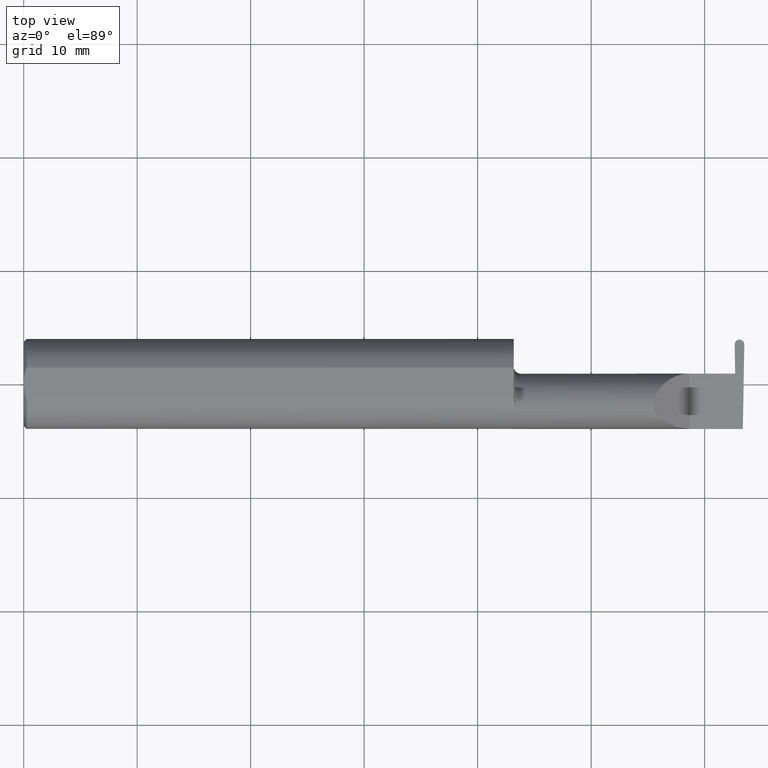
[diagram: clean part render]
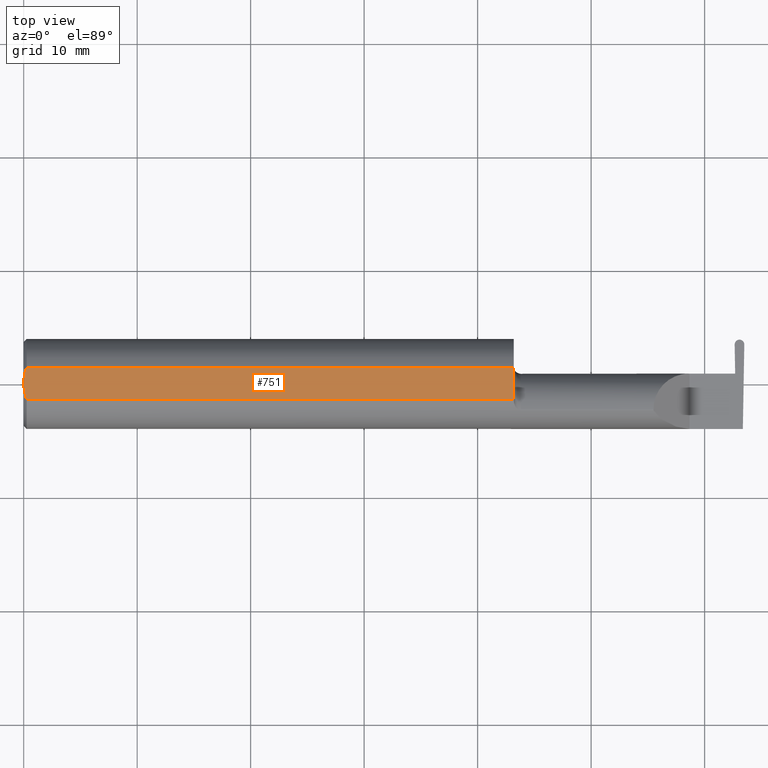
[diagram: same view with one face highlighted and labeled with its STEP entity id]
A machine part, top view. The second image highlights one B-rep face of the part: STEP entity #751.
In plain terms, the highlighted planar face has unit normal (0, 0, 1).
Its self-contained STEP definition (entity closure, byte-faithful):
#1 = CARTESIAN_POINT ( 'NONE',  ( 0.0009113193687667381273, -0.01867274705588958111, 0.1460999999999998411 ) ) ;
#4 = VERTEX_POINT ( 'NONE', #445 ) ;
#5 = DIRECTION ( 'NONE',  ( 0.000000000000000000, 0.000000000000000000, 1.000000000000000000 ) ) ;
#23 = EDGE_CURVE ( 'NONE', #552, #4, #635, .T. ) ;
#41 = CARTESIAN_POINT ( 'NONE',  ( 1.699999999999999956, -0.05497272050753934658, 0.1460999999999998689 ) ) ;
#52 = B_SPLINE_CURVE_WITH_KNOTS ( 'NONE', 3,
 ( #698, #749, #188, #1, #702, #746 ),
 .UNSPECIFIED., .F., .F.,
 ( 4, 2, 4 ),
 ( 0.001497827971916944247, 0.002206109860466205601, 0.002914391749015466521 ),
 .UNSPECIFIED. ) ;
#58 = EDGE_CURVE ( 'NONE', #686, #552, #266, .T. ) ;
#98 = CARTESIAN_POINT ( 'NONE',  ( 1.699999999999999956, 0.05497272050753933964, 0.1460999999999998689 ) ) ;
#115 = VECTOR ( 'NONE', #138, 39.37007874015748143 ) ;
#125 = VECTOR ( 'NONE', #605, 39.37007874015748143 ) ;
#138 = DIRECTION ( 'NONE',  ( -1.000000000000000000, -0.000000000000000000, -0.000000000000000000 ) ) ;
#188 = CARTESIAN_POINT ( 'NONE',  ( 0.004356241145161599167, -0.03705973501792377695, 0.1460999999999998689 ) ) ;
#212 = CARTESIAN_POINT ( 'NONE',  ( 0.009999999999999825001, 0.05497272050753933964, 0.1460999999999998689 ) ) ;
#220 = CARTESIAN_POINT ( 'NONE',  ( -3.378711048560533498E-16, 0.009396510398413096196, 0.1460999999999998689 ) ) ;
#266 = LINE ( 'NONE', #777, #125 ) ;
#269 = VERTEX_POINT ( 'NONE', #428 ) ;
#272 = LINE ( 'NONE', #724, #310 ) ;
#294 = ORIENTED_EDGE ( 'NONE', *, *, #23, .T. ) ;
#310 = VECTOR ( 'NONE', #776, 39.37007874015748143 ) ;
#312 = DIRECTION ( 'NONE',  ( 1.000000000000000000, 0.000000000000000000, -0.000000000000000000 ) ) ;
#326 = ORIENTED_EDGE ( 'NONE', *, *, #573, .F. ) ;
#373 = B_SPLINE_CURVE_WITH_KNOTS ( 'NONE', 3,
 ( #529, #220, #468, #788, #773, #212 ),
 .UNSPECIFIED., .F., .F.,
 ( 4, 2, 4 ),
 ( 0.002914391749015466521, 0.003623333355014861108, 0.004332274961014255694 ),
 .UNSPECIFIED. ) ;
#374 = CARTESIAN_POINT ( 'NONE',  ( 2.814752029381861309, 0.1560999999999999888, 0.1460999999999998689 ) ) ;
#410 = VERTEX_POINT ( 'NONE', #626 ) ;
#418 = AXIS2_PLACEMENT_3D ( 'NONE', #374, #5, #312 ) ;
#428 = CARTESIAN_POINT ( 'NONE',  ( 0.009999999999999825001, -0.05497272050753933964, 0.1460999999999998689 ) ) ;
#445 = CARTESIAN_POINT ( 'NONE',  ( 0.009999999999999825001, 0.05497272050753933964, 0.1460999999999998689 ) ) ;
#468 = CARTESIAN_POINT ( 'NONE',  ( 0.0009290501461037190250, 0.01879395969143605669, 0.1460999999999998689 ) ) ;
#475 = ORIENTED_EDGE ( 'NONE', *, *, #58, .T. ) ;
#529 = CARTESIAN_POINT ( 'NONE',  ( 0.000000000000000000, 0.000000000000000000, 0.1460999999999998689 ) ) ;
#539 = EDGE_CURVE ( 'NONE', #269, #686, #272, .T. ) ;
#552 = VERTEX_POINT ( 'NONE', #98 ) ;
#573 = EDGE_CURVE ( 'NONE', #410, #4, #373, .T. ) ;
#574 = CARTESIAN_POINT ( 'NONE',  ( 0.000000000000000000, 0.05497272050753933964, 0.1460999999999998689 ) ) ;
#576 = PLANE ( 'NONE',  #418 ) ;
#581 = EDGE_LOOP ( 'NONE', ( #704, #475, #294, #326, #649 ) ) ;
#605 = DIRECTION ( 'NONE',  ( 0.000000000000000000, 1.000000000000000000, 0.000000000000000000 ) ) ;
#626 = CARTESIAN_POINT ( 'NONE',  ( 0.000000000000000000, 0.000000000000000000, 0.1460999999999998689 ) ) ;
#635 = LINE ( 'NONE', #574, #115 ) ;
#649 = ORIENTED_EDGE ( 'NONE', *, *, #778, .F. ) ;
#686 = VERTEX_POINT ( 'NONE', #41 ) ;
#698 = CARTESIAN_POINT ( 'NONE',  ( 0.009999999999999825001, -0.05497272050753933964, 0.1460999999999998689 ) ) ;
#702 = CARTESIAN_POINT ( 'NONE',  ( -3.339777545965282799E-16, -0.009387766318748866357, 0.1460999999999998689 ) ) ;
#704 = ORIENTED_EDGE ( 'NONE', *, *, #539, .T. ) ;
#724 = CARTESIAN_POINT ( 'NONE',  ( 0.000000000000000000, -0.05497272050753933964, 0.1460999999999998689 ) ) ;
#735 = FACE_OUTER_BOUND ( 'NONE', #581, .T. ) ;
#746 = CARTESIAN_POINT ( 'NONE',  ( 0.000000000000000000, 0.000000000000000000, 0.1460999999999998689 ) ) ;
#749 = CARTESIAN_POINT ( 'NONE',  ( 0.006903212852520951119, -0.04617911398309931109, 0.1460999999999998689 ) ) ;
#751 = ADVANCED_FACE ( 'NONE', ( #735 ), #576, .T. ) ;
#773 = CARTESIAN_POINT ( 'NONE',  ( 0.006876379561362597204, 0.04610291843171884091, 0.1460999999999998689 ) ) ;
#776 = DIRECTION ( 'NONE',  ( 1.000000000000000000, 0.000000000000000000, 0.000000000000000000 ) ) ;
#777 = CARTESIAN_POINT ( 'NONE',  ( 1.699999999999999956, 0.1560999999999999888, 0.1460999999999998689 ) ) ;
#778 = EDGE_CURVE ( 'NONE', #269, #410, #52, .T. ) ;
#788 = CARTESIAN_POINT ( 'NONE',  ( 0.004370115738486759528, 0.03710696786819756010, 0.1460999999999998411 ) ) ;